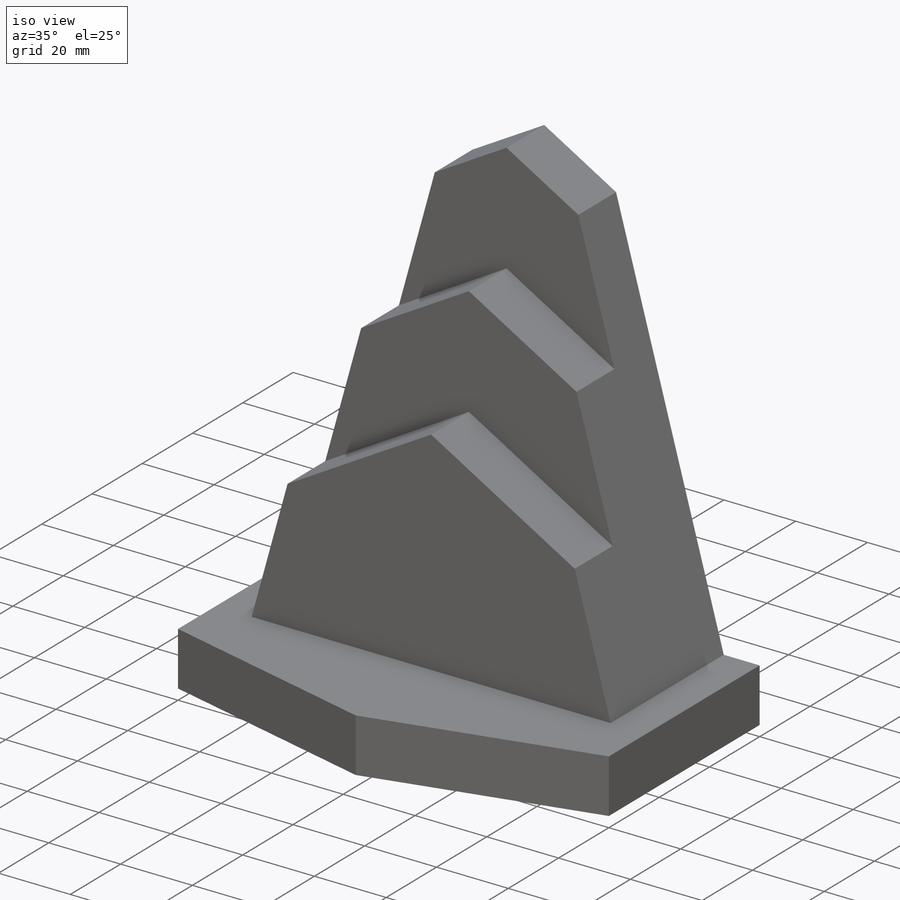
[diagram: iso view]
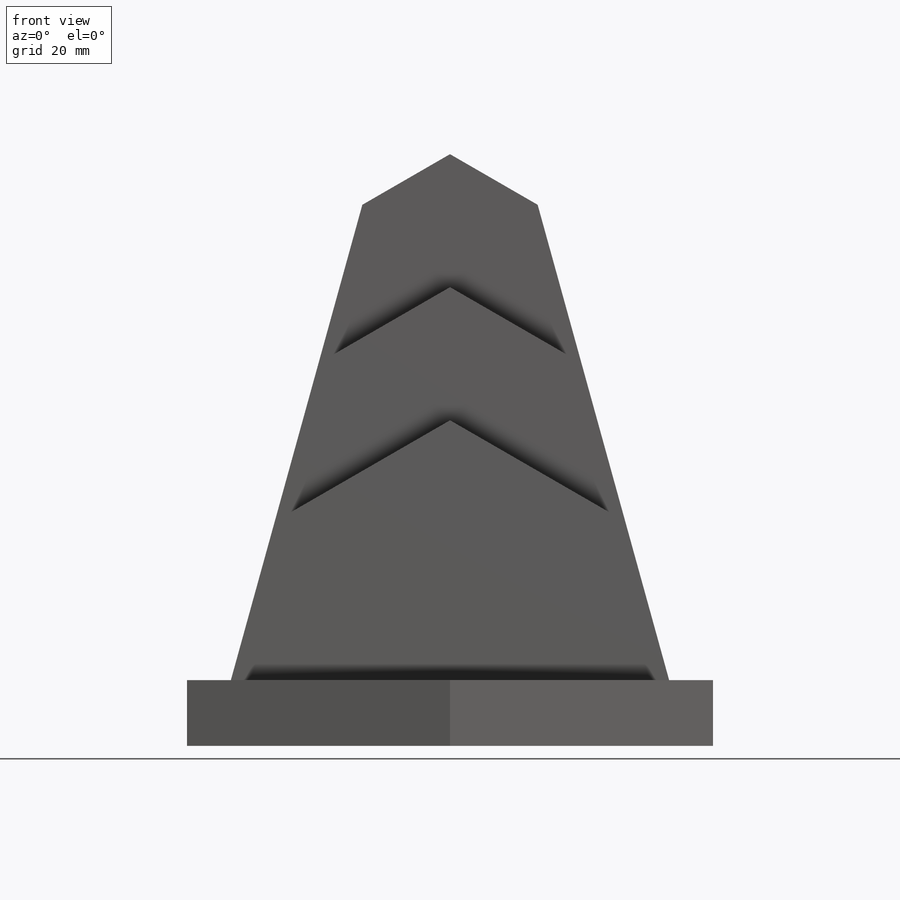
[diagram: front view]
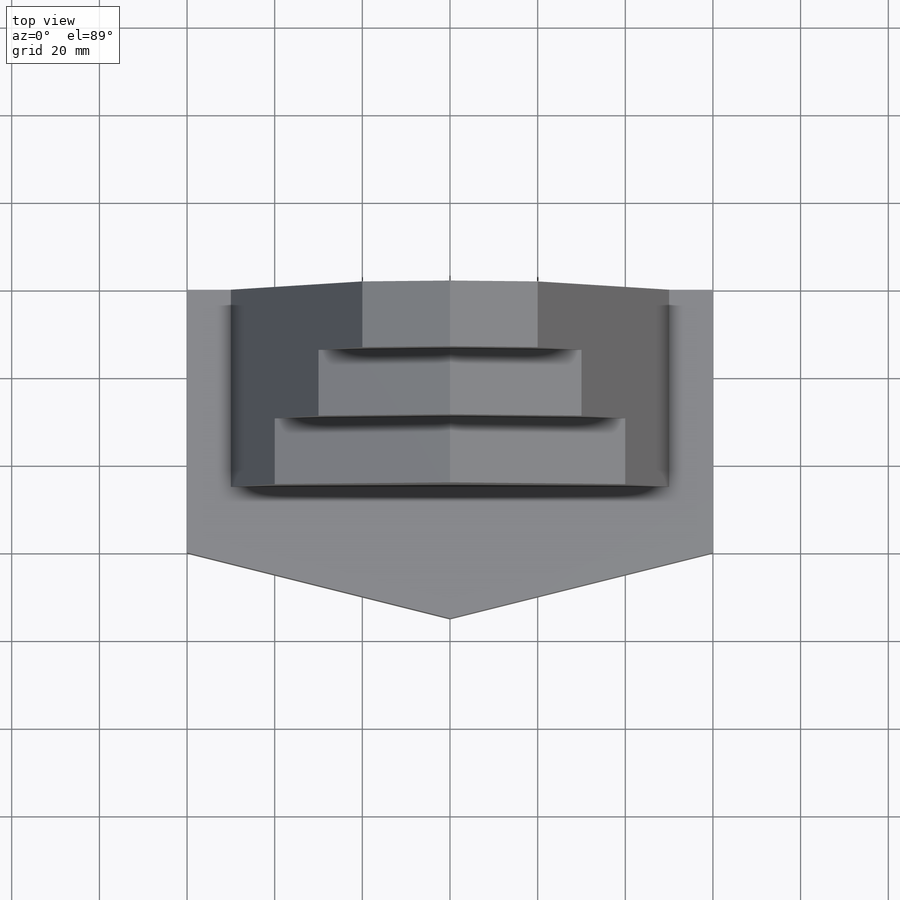
[diagram: top view]
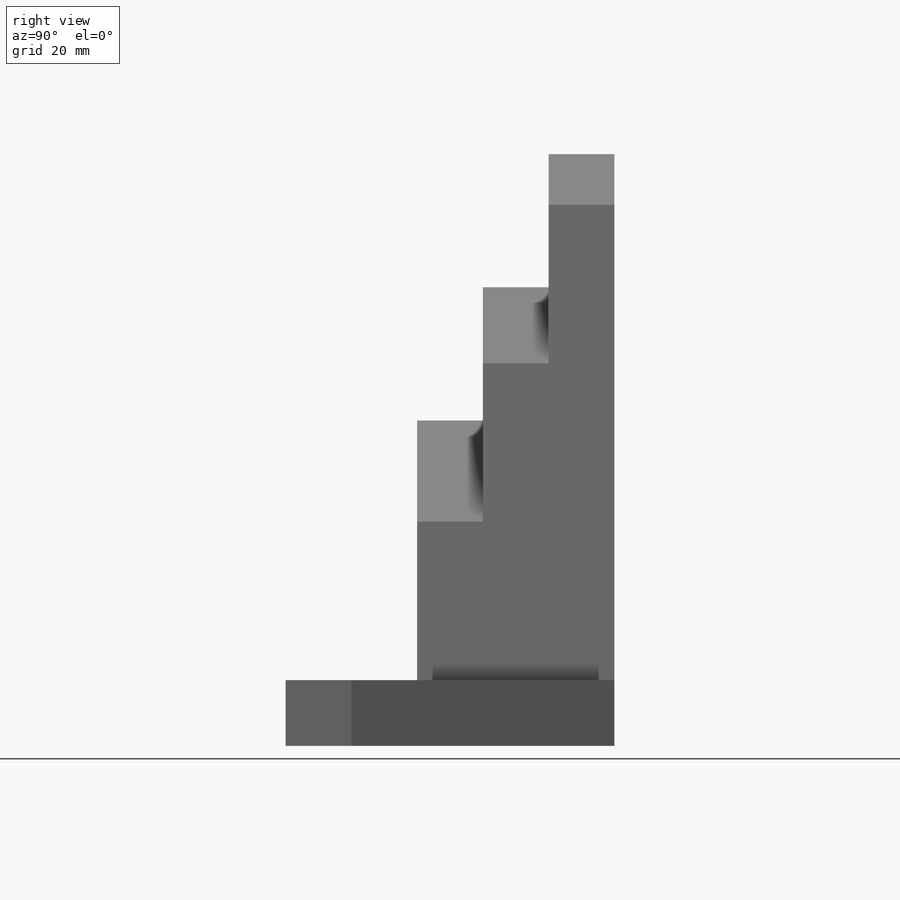
[diagram: right view]
SOLIDWORKS PART (.sldprt)
format: sldprt  version: not decoded by parser v0  size: 254,464 bytes
history: native  units: mm
features: sketch x4, extrude x4, material x1 (+16 scaffold rows collapsed)
feature tree (25):
  scaffold x16  (default folders/planes/origin — collapsed)
  material  "Material <not specified>"
  sketch  "Sketch1"  dims[D1=15.0mm D2=60.0mm D3=60.0mm D4=60.0mm]
  extrude  "Extrude1"  Depth=15mm
  sketch  "Sketch2"  dims[c1.D1=~22.157493mm c2.D1=120.0deg c2.D2=~19.696732mm c3.D2=120.0deg c3.D3=50.0mm c3.D4=50.0mm c3.D5=120.0mm c3.D6=20.0mm c3.D7=20.0mm c3.D8=0.0mm]
  extrude  "Extrude2"  Depth=15mm
  sketch  "Sketch3"  dims[c1.D1=10.0mm c1.D2=10.0mm c2.D1=10.0mm c2.D2=10.0mm]
  extrude  "Extrude3"  Depth=15mm
  sketch  "Sketch4"  dims[D1=10.0mm D2=10.0mm]
  extrude  "Extrude4"  Depth=15mm
decode coverage: 8 of 8 modeling features carry decoded parameters
note: ~ marks probable driven/reference dimensions
note: suppression state not decoded; provenance and decode notes live in map.json
